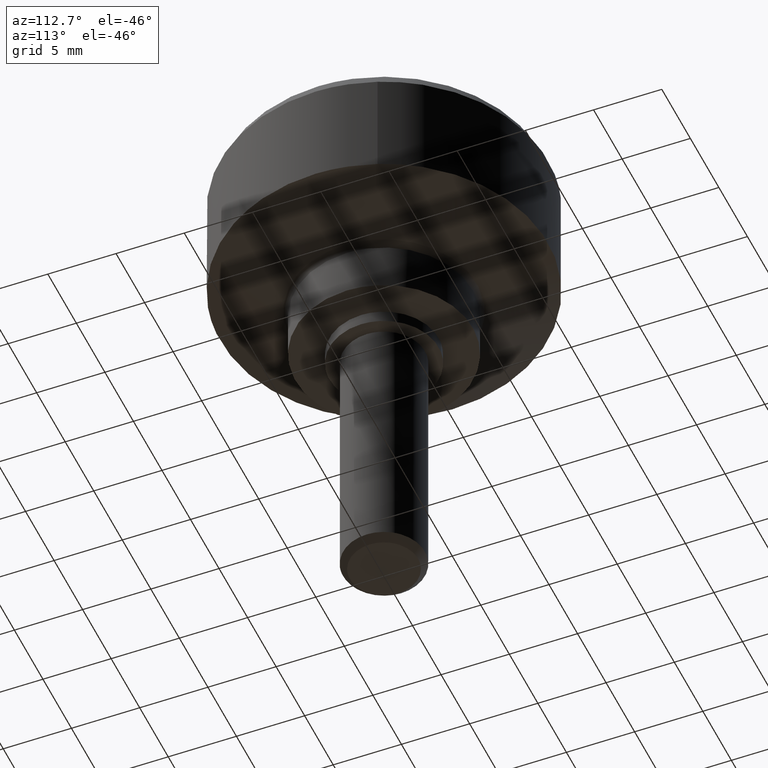
[diagram: clean part render]
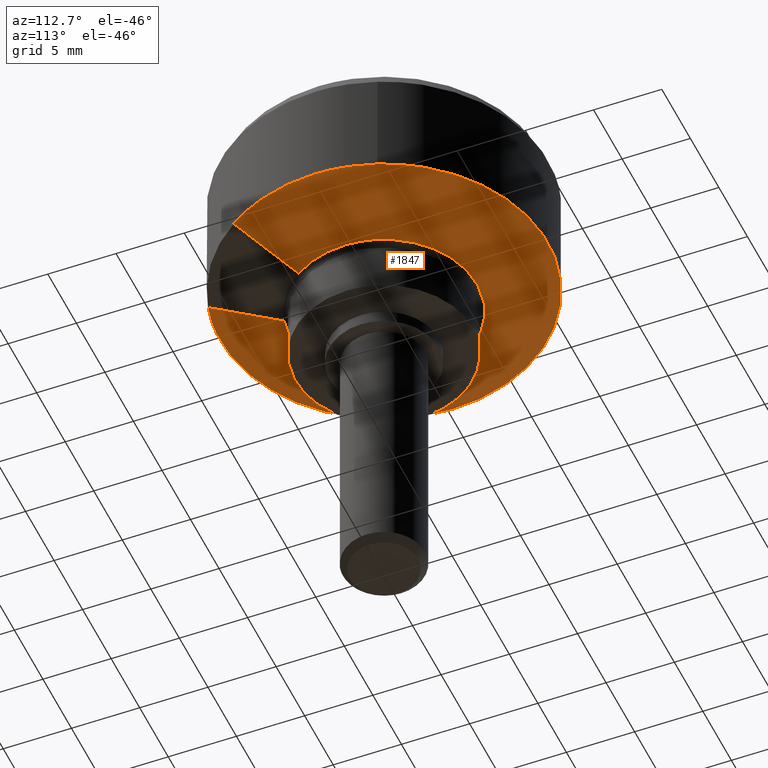
[diagram: same view with one face highlighted and labeled with its STEP entity id]
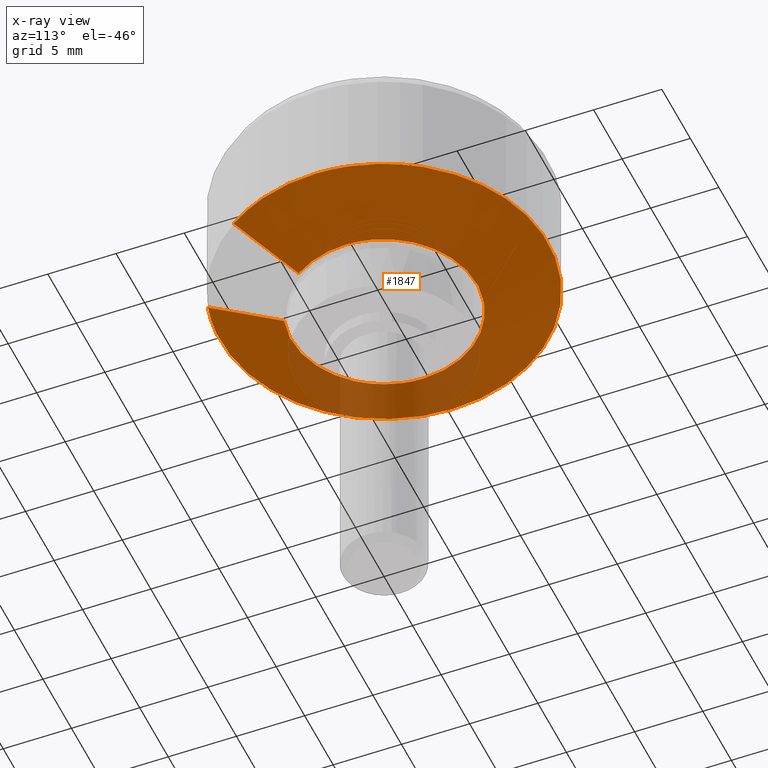
[diagram: x-ray of the same camera — body ghosted, the highlighted face saturated]
A machine part, auxiliary view. The second image highlights one B-rep face of the part: STEP entity #1847.
The next image is the same camera in x-ray: the body ghosted, the highlighted face saturated — about 16% of this face is hidden behind the body in this view.
In plain terms, the highlighted face is a freeform B-spline surface patch.
Its self-contained STEP definition (entity closure, byte-faithful):
#1647=CARTESIAN_POINT('',(5.467015515148619,-3.855292331182444,4.972407238954301));
#1648=CARTESIAN_POINT('',(7.293157583531348,-1.265722938489479,4.972407238954302));
#1649=CARTESIAN_POINT('',(6.446359138696467,1.787733608984972,4.972407238954301));
#1650=CARTESIAN_POINT('',(4.658625529711495,8.234092747681439,4.972407238954301));
#1651=CARTESIAN_POINT('',(-1.787733608984972,6.446359138696467,4.972407238954301));
#1652=CARTESIAN_POINT('',(-8.234092747681439,4.658625529711495,4.972407238954301));
#1653=CARTESIAN_POINT('',(-6.446359138696467,-1.787733608984972,4.972407238954301));
#1654=CARTESIAN_POINT('',(-4.658625529711495,-8.234092747681439,4.972407238954301));
#1655=CARTESIAN_POINT('',(1.787733608984972,-6.446359138696467,4.972407238954301));
#1656=CARTESIAN_POINT('',(9.915300473243770,-6.992184633452093,7.050689819026245));
#1657=CARTESIAN_POINT('',(13.227298996875794,-2.295589470383833,7.050689819026245));
#1658=CARTESIAN_POINT('',(11.691495595998649,3.242338685537937,7.050689819026245));
#1659=CARTESIAN_POINT('',(8.449156910460712,14.933834281536596,7.050689819026244));
#1660=CARTESIAN_POINT('',(-3.242338685537937,11.691495595998649,7.050689819026245));
#1661=CARTESIAN_POINT('',(-14.933834281536596,8.449156910460712,7.050689819026244));
#1662=CARTESIAN_POINT('',(-11.691495595998649,-3.242338685537937,7.050689819026245));
#1663=CARTESIAN_POINT('',(-8.449156910460712,-14.933834281536596,7.050689819026244));
#1664=CARTESIAN_POINT('',(3.242338685537937,-11.691495595998649,7.050689819026245));
#1672=(BOUNDED_SURFACE()B_SPLINE_SURFACE(2,1,((#1647,#1656),(#1648,#1657),(#1649,#1658),(#1650,#1659),(#1651,#1660),(#1652,#1661),(#1653,#1662),(#1654,#1663),(#1655,#1664)),.UNSPECIFIED.,.F.,.F.,.U.)B_SPLINE_SURFACE_WITH_KNOTS((3,2,2,2,3),(2,2),(0.0,11.257239011204740,31.359451531213210,51.461664051221682,71.563876571230139),(0.0,5.826370299516214),.UNSPECIFIED.)GEOMETRIC_REPRESENTATION_ITEM()RATIONAL_B_SPLINE_SURFACE(((0.855662221768731,0.855662221768731),(0.835979797464467,0.835979797464467),(1.0,1.0),(0.707106781186548,0.707106781186548),(1.0,1.0),(0.707106781186548,0.707106781186548),(1.0,1.0),(0.707106781186548,0.707106781186548),(1.0,1.0)))REPRESENTATION_ITEM('')SURFACE());
#1673=CARTESIAN_POINT('',(12.0,0.0,7.000000000000100));
#1674=VERTEX_POINT('',#1673);
#1675=CARTESIAN_POINT('',(9.806805718167032,-6.915675065105986,7.000000000000137));
#1676=VERTEX_POINT('',#1675);
#1677=CARTESIAN_POINT('',(12.0,0.0,7.000000000000100));
#1678=CARTESIAN_POINT('',(12.000000000000007,-3.805605545986197,7.000000000000100));
#1679=CARTESIAN_POINT('',(9.806805718167031,-6.915675065105986,7.000000000000138));
#1687=(BOUNDED_CURVE()B_SPLINE_CURVE(2,(#1677,#1678,#1679),.UNSPECIFIED.,.F.,.U.)B_SPLINE_CURVE_WITH_KNOTS((3,3),(0.500000000000000,0.599105163478972),.UNSPECIFIED.)CURVE()GEOMETRIC_REPRESENTATION_ITEM()RATIONAL_B_SPLINE_CURVE((1.0,0.883891078670442,0.859838106378747))REPRESENTATION_ITEM(''));
#1688=EDGE_CURVE('',#1674,#1676,#1687,.T.);
#1689=ORIENTED_EDGE('',*,*,#1688,.T.);
#1690=CARTESIAN_POINT('',(5.572864083174181,-3.929935831213765,5.021860733314792));
#1691=VERTEX_POINT('',#1690);
#1692=CARTESIAN_POINT('',(5.572864083174181,-3.929935831213765,5.021860733314792));
#1693=CARTESIAN_POINT('',(9.806805718167032,-6.915675065105986,7.000000000000137));
#1694=QUASI_UNIFORM_CURVE('',1,(#1692,#1693),.UNSPECIFIED.,.F.,.U.);
#1695=EDGE_CURVE('',#1691,#1676,#1694,.T.);
#1696=ORIENTED_EDGE('',*,*,#1695,.F.);
#1697=CARTESIAN_POINT('',(6.819179549401331,0.0,5.021860733314310));
#1698=VERTEX_POINT('',#1697);
#1699=CARTESIAN_POINT('',(6.819179549401331,0.0,5.021860733314310));
#1700=CARTESIAN_POINT('',(6.819179549401331,-2.162592292721300,5.021860733314310));
#1701=CARTESIAN_POINT('',(5.572864083174183,-3.929935831213765,5.021860733314792));
#1709=(BOUNDED_CURVE()B_SPLINE_CURVE(2,(#1699,#1700,#1701),.UNSPECIFIED.,.F.,.U.)B_SPLINE_CURVE_WITH_KNOTS((3,3),(0.500000000000000,0.599105163480249),.UNSPECIFIED.)CURVE()GEOMETRIC_REPRESENTATION_ITEM()RATIONAL_B_SPLINE_CURVE((1.0,0.883891078668946,0.859838106378128))REPRESENTATION_ITEM(''));
#1710=EDGE_CURVE('',#1698,#1691,#1709,.T.);
#1711=ORIENTED_EDGE('',*,*,#1710,.F.);
#1712=CARTESIAN_POINT('',(-1.844081183306843,6.565102731944794,5.021860720932100));
#1713=VERTEX_POINT('',#1712);
#1714=CARTESIAN_POINT('',(-1.844081183306844,6.565102731944794,5.021860720932100));
#1715=CARTESIAN_POINT('',(-0.939543896373535,6.819179549401332,5.021860733314311));
#1716=CARTESIAN_POINT('',(0.0,6.819179549401331,5.021860733314310));
#1717=CARTESIAN_POINT('',(6.819179549401331,6.819179549401331,5.021860733314309));
#1718=CARTESIAN_POINT('',(6.819179549401331,0.0,5.021860733314310));
#1726=(BOUNDED_CURVE()B_SPLINE_CURVE(2,(#1714,#1715,#1716,#1717,#1718),.UNSPECIFIED.,.F.,.U.)B_SPLINE_CURVE_WITH_KNOTS((3,2,3),(0.203917489179990,0.250000000000000,0.500000000000000),.UNSPECIFIED.)CURVE()GEOMETRIC_REPRESENTATION_ITEM()RATIONAL_B_SPLINE_CURVE((0.911925557275383,0.946010980299685,1.0,0.707106781186547,1.0))REPRESENTATION_ITEM(''));
#1727=EDGE_CURVE('',#1713,#1698,#1726,.T.);
#1728=ORIENTED_EDGE('',*,*,#1727,.F.);
#1729=CARTESIAN_POINT('',(-6.819179549401331,0.0,5.021860733314310));
#1730=VERTEX_POINT('',#1729);
#1731=CARTESIAN_POINT('',(-6.819179549401331,0.0,5.021860733314310));
#1732=CARTESIAN_POINT('',(-6.819179549401332,5.167640203091920,5.021860733314310));
#1733=CARTESIAN_POINT('',(-1.844081183306844,6.565102731944794,5.021860720932100));
#1741=(BOUNDED_CURVE()B_SPLINE_CURVE(2,(#1731,#1732,#1733),.UNSPECIFIED.,.F.,.U.)B_SPLINE_CURVE_WITH_KNOTS((3,3),(0.0,0.203917489179990),.UNSPECIFIED.)CURVE()GEOMETRIC_REPRESENTATION_ITEM()RATIONAL_B_SPLINE_CURVE((1.0,0.761095800886862,0.911925557275383))REPRESENTATION_ITEM(''));
#1742=EDGE_CURVE('',#1730,#1713,#1741,.T.);
#1743=ORIENTED_EDGE('',*,*,#1742,.F.);
#1744=CARTESIAN_POINT('',(-6.308267540832441,-2.589781829586717,5.021860720931028));
#1745=VERTEX_POINT('',#1744);
#1746=CARTESIAN_POINT('',(-6.308267540832441,-2.589781829586717,5.021860720931029));
#1747=CARTESIAN_POINT('',(-6.819179549401331,-1.345287260580383,5.021860733314310));
#1748=CARTESIAN_POINT('',(-6.819179549401331,0.0,5.021860733314310));
#1756=(BOUNDED_CURVE()B_SPLINE_CURVE(2,(#1746,#1747,#1748),.UNSPECIFIED.,.F.,.U.)B_SPLINE_CURVE_WITH_KNOTS((3,3),(0.935520056540562,1.0),.UNSPECIFIED.)CURVE()GEOMETRIC_REPRESENTATION_ITEM()RATIONAL_B_SPLINE_CURVE((0.887882137069245,0.924457047245023,1.0))REPRESENTATION_ITEM(''));
#1757=EDGE_CURVE('',#1745,#1730,#1756,.T.);
#1758=ORIENTED_EDGE('',*,*,#1757,.F.);
#1759=CARTESIAN_POINT('',(1.822346468997985,-6.571169079695922,5.021860733315647));
#1760=VERTEX_POINT('',#1759);
#1761=CARTESIAN_POINT('',(1.822346468997984,-6.571169079695923,5.021860733315647));
#1762=CARTESIAN_POINT('',(0.928049606304713,-6.819179549401331,5.021860733314310));
#1763=CARTESIAN_POINT('',(0.0,-6.819179549401331,5.021860733314310));
#1764=CARTESIAN_POINT('',(-4.571940240594466,-6.819179549401331,5.021860733314310));
#1765=CARTESIAN_POINT('',(-6.308267540832441,-2.589781829586718,5.021860720931028));
#1773=(BOUNDED_CURVE()B_SPLINE_CURVE(2,(#1761,#1762,#1763,#1764,#1765),.UNSPECIFIED.,.F.,.U.)B_SPLINE_CURVE_WITH_KNOTS((3,2,3),(0.704451173364589,0.750000000000000,0.935520056540561),.UNSPECIFIED.)CURVE()GEOMETRIC_REPRESENTATION_ITEM()RATIONAL_B_SPLINE_CURVE((0.912717717217270,0.946636230214314,1.0,0.782649733941525,0.887882137069245))REPRESENTATION_ITEM(''));
#1774=EDGE_CURVE('',#1760,#1745,#1773,.T.);
#1775=ORIENTED_EDGE('',*,*,#1774,.F.);
#1776=CARTESIAN_POINT('',(3.206860512983313,-11.563565438496640,7.000000000002100));
#1777=VERTEX_POINT('',#1776);
#1778=CARTESIAN_POINT('',(1.822346468997985,-6.571169079695922,5.021860733315647));
#1779=CARTESIAN_POINT('',(3.206860512983313,-11.563565438496640,7.000000000002100));
#1780=QUASI_UNIFORM_CURVE('',1,(#1778,#1779),.UNSPECIFIED.,.F.,.U.);
#1781=EDGE_CURVE('',#1760,#1777,#1780,.T.);
#1782=ORIENTED_EDGE('',*,*,#1781,.T.);
#1783=CARTESIAN_POINT('',(0.732581056149385,-11.977617667807280,7.000000000000099));
#1784=VERTEX_POINT('',#1783);
#1785=CARTESIAN_POINT('',(3.206860512983313,-11.563565438496644,7.000000000002100));
#1786=CARTESIAN_POINT('',(1.991480118441983,-11.900620252276354,7.000000000000100));
#1787=CARTESIAN_POINT('',(0.732581056149385,-11.977617667807275,7.000000000000099));
#1795=(BOUNDED_CURVE()B_SPLINE_CURVE(2,(#1785,#1786,#1787),.UNSPECIFIED.,.F.,.U.)B_SPLINE_CURVE_WITH_KNOTS((3,3),(0.704451173364817,0.739332982673222),.UNSPECIFIED.)CURVE()GEOMETRIC_REPRESENTATION_ITEM()RATIONAL_B_SPLINE_CURVE((0.912717717217609,0.938692900110052,0.976072085461273))REPRESENTATION_ITEM(''));
#1796=EDGE_CURVE('',#1777,#1784,#1795,.T.);
#1797=ORIENTED_EDGE('',*,*,#1796,.T.);
#1798=CARTESIAN_POINT('',(-12.0,0.0,7.000000000000100));
#1799=VERTEX_POINT('',#1798);
#1800=CARTESIAN_POINT('',(0.732581056149385,-11.977617667807275,7.000000000000099));
#1801=CARTESIAN_POINT('',(0.366632448460281,-12.0,7.000000000000099));
#1802=CARTESIAN_POINT('',(0.0,-12.0,7.000000000000100));
#1803=CARTESIAN_POINT('',(-12.0,-12.0,7.000000000000100));
#1804=CARTESIAN_POINT('',(-12.0,0.0,7.000000000000100));
#1812=(BOUNDED_CURVE()B_SPLINE_CURVE(2,(#1800,#1801,#1802,#1803,#1804),.UNSPECIFIED.,.F.,.U.)B_SPLINE_CURVE_WITH_KNOTS((3,2,3),(0.739332982673222,0.750000000000000,1.0),.UNSPECIFIED.)CURVE()GEOMETRIC_REPRESENTATION_ITEM()RATIONAL_B_SPLINE_CURVE((0.976072085461273,0.987502811840085,1.0,0.707106781186548,1.0))REPRESENTATION_ITEM(''));
#1813=EDGE_CURVE('',#1784,#1799,#1812,.T.);
#1814=ORIENTED_EDGE('',*,*,#1813,.T.);
#1815=CARTESIAN_POINT('',(11.233724402044560,4.219411814328081,7.000000000000100));
#1816=VERTEX_POINT('',#1815);
#1817=CARTESIAN_POINT('',(-12.0,0.0,7.000000000000100));
#1818=CARTESIAN_POINT('',(-12.0,12.0,7.000000000000100));
#1819=CARTESIAN_POINT('',(0.0,12.0,7.000000000000100));
#1820=CARTESIAN_POINT('',(8.311318213491285,12.0,7.000000000000100));
#1821=CARTESIAN_POINT('',(11.233724402044562,4.219411814328081,7.000000000000100));
#1829=(BOUNDED_CURVE()B_SPLINE_CURVE(2,(#1817,#1818,#1819,#1820,#1821),.UNSPECIFIED.,.F.,.U.)B_SPLINE_CURVE_WITH_KNOTS((3,2,3),(0.0,0.250000000000000,0.440284225430094),.UNSPECIFIED.)CURVE()GEOMETRIC_REPRESENTATION_ITEM()RATIONAL_B_SPLINE_CURVE((1.0,0.707106781186548,1.0,0.777068162897421,0.893499621369019))REPRESENTATION_ITEM(''));
#1830=EDGE_CURVE('',#1799,#1816,#1829,.T.);
#1831=ORIENTED_EDGE('',*,*,#1830,.T.);
#1832=CARTESIAN_POINT('',(11.233724402044562,4.219411814328081,7.000000000000100));
#1833=CARTESIAN_POINT('',(12.000000000000004,2.179286493020586,7.000000000000100));
#1834=CARTESIAN_POINT('',(12.0,0.0,7.000000000000100));
#1842=(BOUNDED_CURVE()B_SPLINE_CURVE(2,(#1832,#1833,#1834),.UNSPECIFIED.,.F.,.U.)B_SPLINE_CURVE_WITH_KNOTS((3,3),(0.440284225430094,0.500000000000000),.UNSPECIFIED.)CURVE()GEOMETRIC_REPRESENTATION_ITEM()RATIONAL_B_SPLINE_CURVE((0.893499621369019,0.930038618289126,1.0))REPRESENTATION_ITEM(''));
#1843=EDGE_CURVE('',#1816,#1674,#1842,.T.);
#1844=ORIENTED_EDGE('',*,*,#1843,.T.);
#1845=EDGE_LOOP('',(#1689,#1696,#1711,#1728,#1743,#1758,#1775,#1782,#1797,#1814,#1831,#1844));
#1846=FACE_OUTER_BOUND('',#1845,.T.);
#1847=ADVANCED_FACE('',(#1846),#1672,.T.);